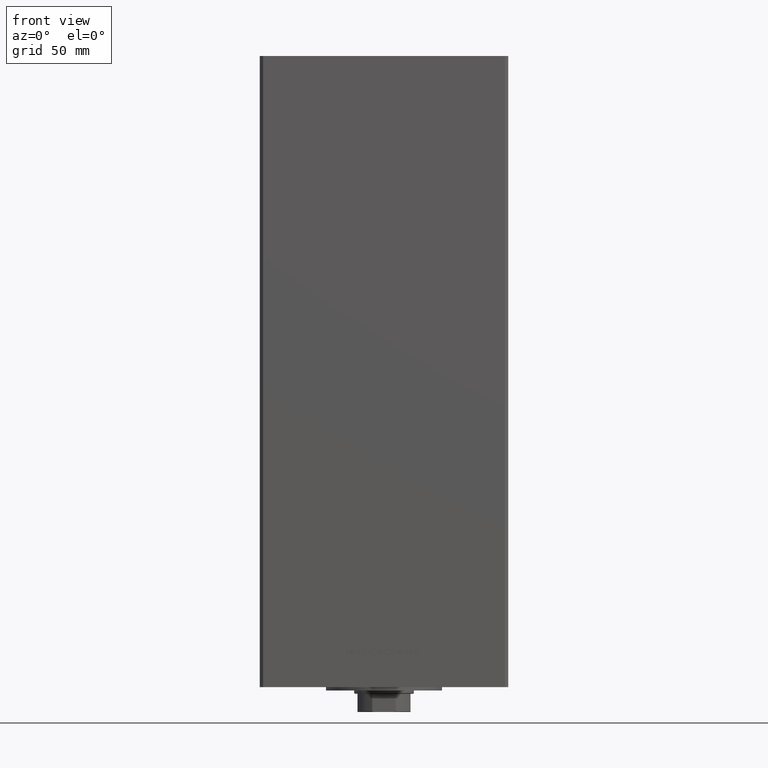
[diagram: clean part render]
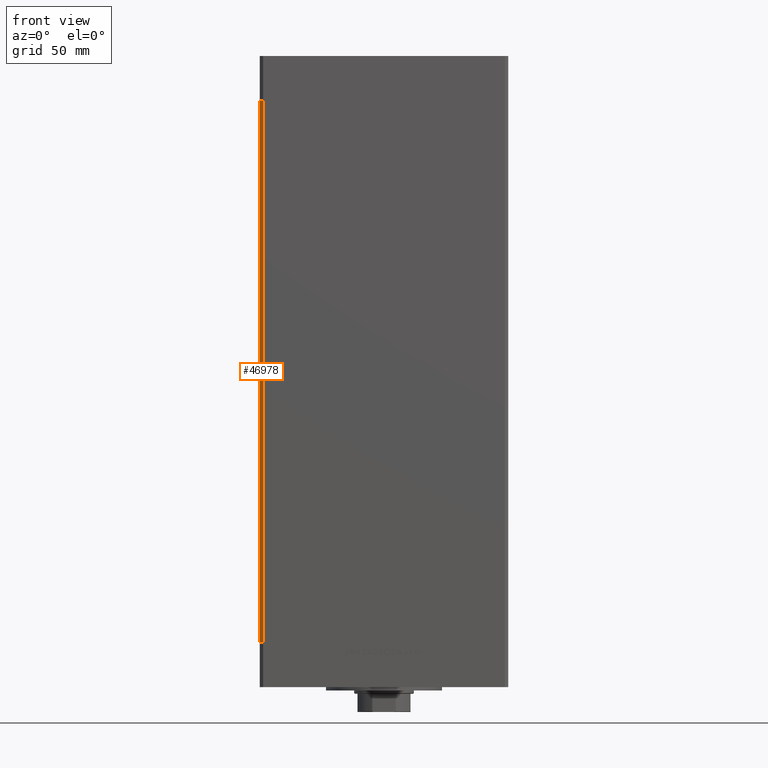
[diagram: same view with one face highlighted and labeled with its STEP entity id]
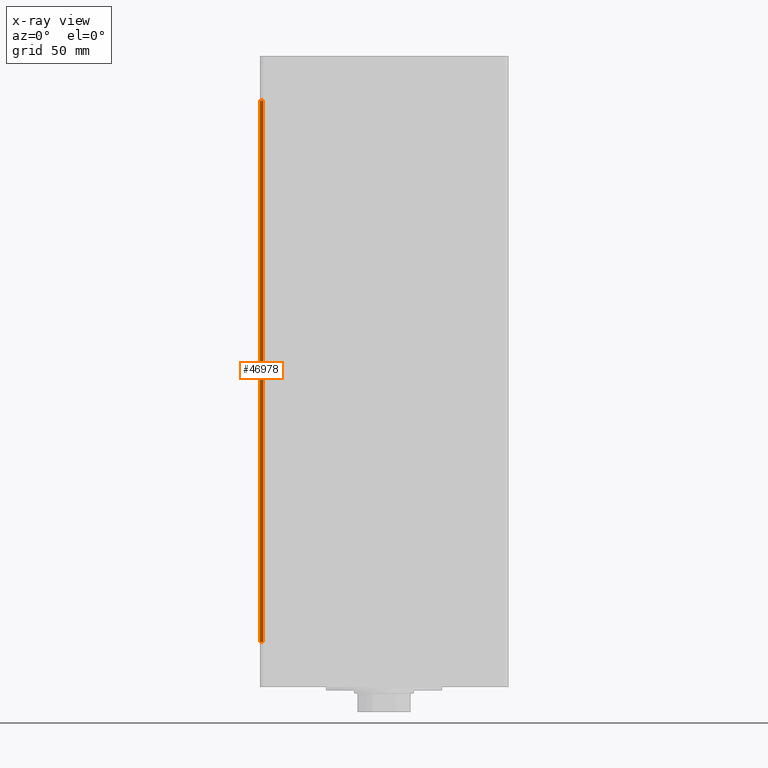
[diagram: x-ray of the same camera — body ghosted, the highlighted face saturated]
A machine part, front view. The second image highlights one B-rep face of the part: STEP entity #46978.
The next image is the same camera in x-ray: the body ghosted, the highlighted face saturated — about 0% of this face is hidden behind the body in this view.
In plain terms, the highlighted planar face has unit normal (0.7071, 0.7071, 0).
Its self-contained STEP definition (entity closure, byte-faithful):
#2573 = LINE ( 'NONE', #29570, #19088 ) ;
#3215 = DIRECTION ( 'NONE',  ( -0.000000000000000000, -0.000000000000000000, -1.000000000000000000 ) ) ;
#3760 = VECTOR ( 'NONE', #3811, 1000.000000000000000 ) ;
#3811 = DIRECTION ( 'NONE',  ( -0.000000000000000000, -0.000000000000000000, -1.000000000000000000 ) ) ;
#3860 = LINE ( 'NONE', #11844, #24425 ) ;
#4782 = ORIENTED_EDGE ( 'NONE', *, *, #47590, .T. ) ;
#5102 = EDGE_LOOP ( 'NONE', ( #4782, #43658, #5465, #23972 ) ) ;
#5465 = ORIENTED_EDGE ( 'NONE', *, *, #5700, .F. ) ;
#5700 = EDGE_CURVE ( 'NONE', #22490, #38112, #3860, .T. ) ;
#6598 = VECTOR ( 'NONE', #3215, 1000.000000000000000 ) ;
#7311 = CARTESIAN_POINT ( 'NONE',  ( -74.99999999999998579, -60.50000000000000000, 327.0000000000000000 ) ) ;
#8214 = VERTEX_POINT ( 'NONE', #10200 ) ;
#8721 = CARTESIAN_POINT ( 'NONE',  ( -74.99999999999998579, -60.50000000000000000, 327.0000000000000000 ) ) ;
#8936 = EDGE_CURVE ( 'NONE', #22490, #17013, #18569, .T. ) ;
#10200 = CARTESIAN_POINT ( 'NONE',  ( -72.99999999999998579, -62.50000000000000000, 0.000000000000000000 ) ) ;
#11595 = DIRECTION ( 'NONE',  ( 0.7071067811865474617, -0.7071067811865474617, 0.000000000000000000 ) ) ;
#11844 = CARTESIAN_POINT ( 'NONE',  ( -74.99999999999998579, -60.50000000000000000, 327.0000000000000000 ) ) ;
#12170 = CARTESIAN_POINT ( 'NONE',  ( -72.99999999999998579, -62.50000000000000000, 327.0000000000000000 ) ) ;
#16311 = CARTESIAN_POINT ( 'NONE',  ( -74.99999999999998579, -60.50000000000000000, 0.000000000000000000 ) ) ;
#17013 = VERTEX_POINT ( 'NONE', #16311 ) ;
#17151 = FACE_OUTER_BOUND ( 'NONE', #5102, .T. ) ;
#18569 = LINE ( 'NONE', #7311, #3760 ) ;
#19088 = VECTOR ( 'NONE', #44777, 1000.000000000000114 ) ;
#20655 = AXIS2_PLACEMENT_3D ( 'NONE', #32387, #31648, #43360 ) ;
#22490 = VERTEX_POINT ( 'NONE', #8721 ) ;
#23972 = ORIENTED_EDGE ( 'NONE', *, *, #8936, .T. ) ;
#24425 = VECTOR ( 'NONE', #11595, 1000.000000000000114 ) ;
#28673 = EDGE_CURVE ( 'NONE', #38112, #8214, #29722, .T. ) ;
#29570 = CARTESIAN_POINT ( 'NONE',  ( -74.99999999999998579, -60.50000000000000000, 0.000000000000000000 ) ) ;
#29722 = LINE ( 'NONE', #33701, #6598 ) ;
#31648 = DIRECTION ( 'NONE',  ( 0.7071067811865475727, 0.7071067811865475727, -0.000000000000000000 ) ) ;
#32143 = PLANE ( 'NONE',  #20655 ) ;
#32387 = CARTESIAN_POINT ( 'NONE',  ( -74.99999999999998579, -60.50000000000000000, 327.0000000000000000 ) ) ;
#33701 = CARTESIAN_POINT ( 'NONE',  ( -72.99999999999998579, -62.50000000000000000, 327.0000000000000000 ) ) ;
#38112 = VERTEX_POINT ( 'NONE', #12170 ) ;
#43360 = DIRECTION ( 'NONE',  ( -0.7071067811865474617, 0.7071067811865474617, 0.000000000000000000 ) ) ;
#43658 = ORIENTED_EDGE ( 'NONE', *, *, #28673, .F. ) ;
#44777 = DIRECTION ( 'NONE',  ( 0.7071067811865474617, -0.7071067811865474617, 0.000000000000000000 ) ) ;
#46978 = ADVANCED_FACE ( 'NONE', ( #17151 ), #32143, .F. ) ;
#47590 = EDGE_CURVE ( 'NONE', #17013, #8214, #2573, .T. ) ;